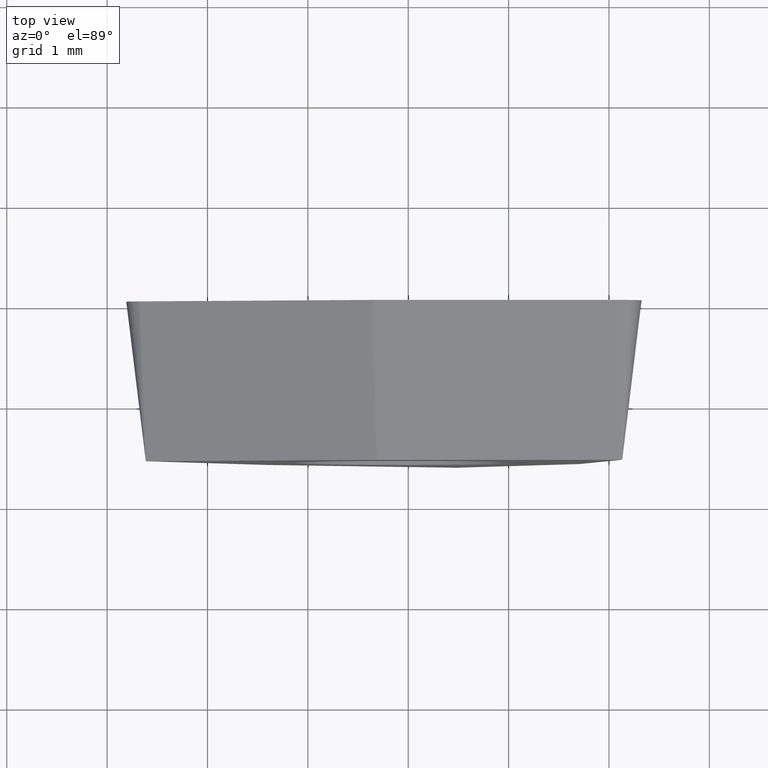
[diagram: clean part render]
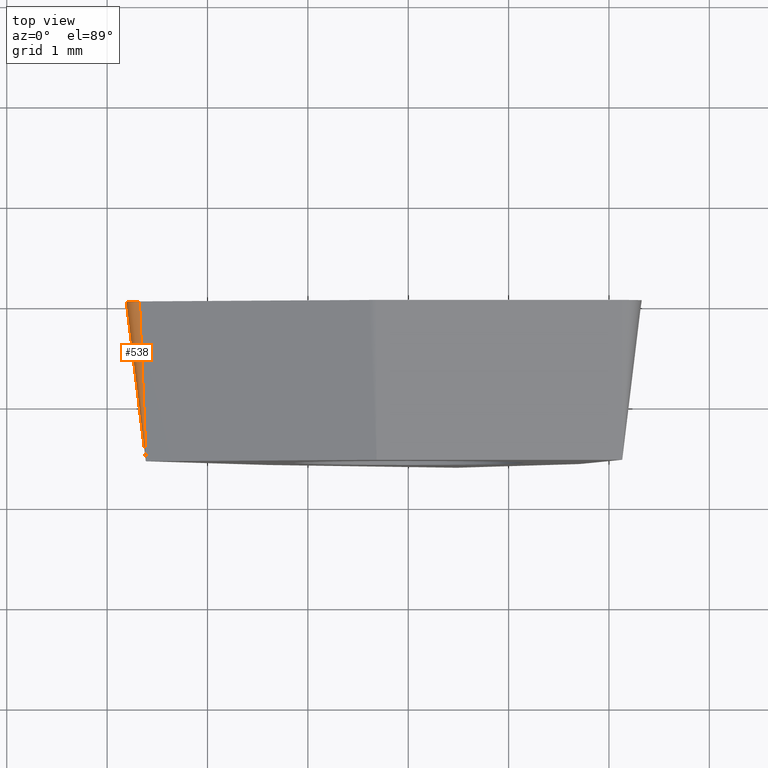
[diagram: same view with one face highlighted and labeled with its STEP entity id]
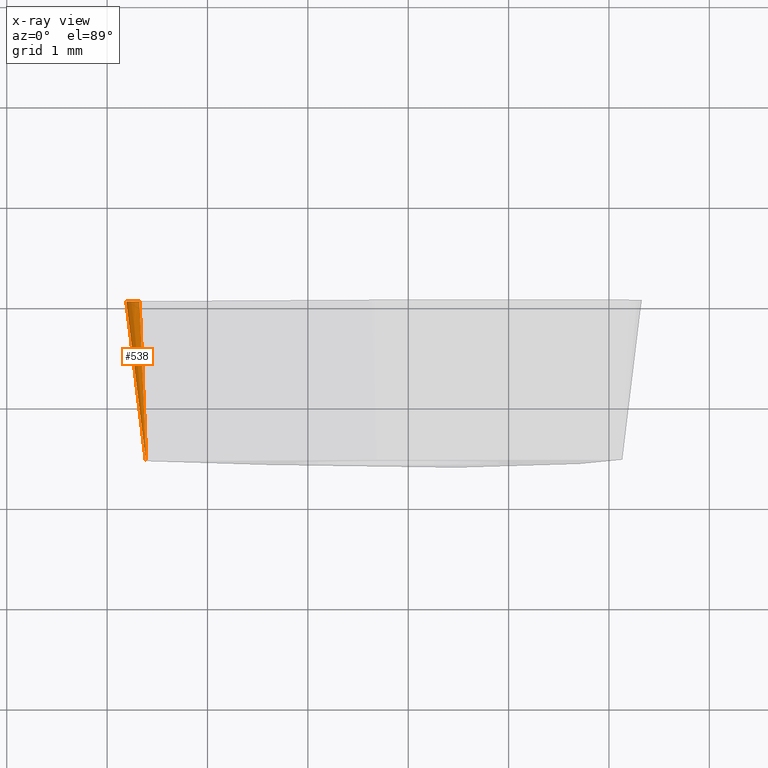
[diagram: x-ray of the same camera — body ghosted, the highlighted face saturated]
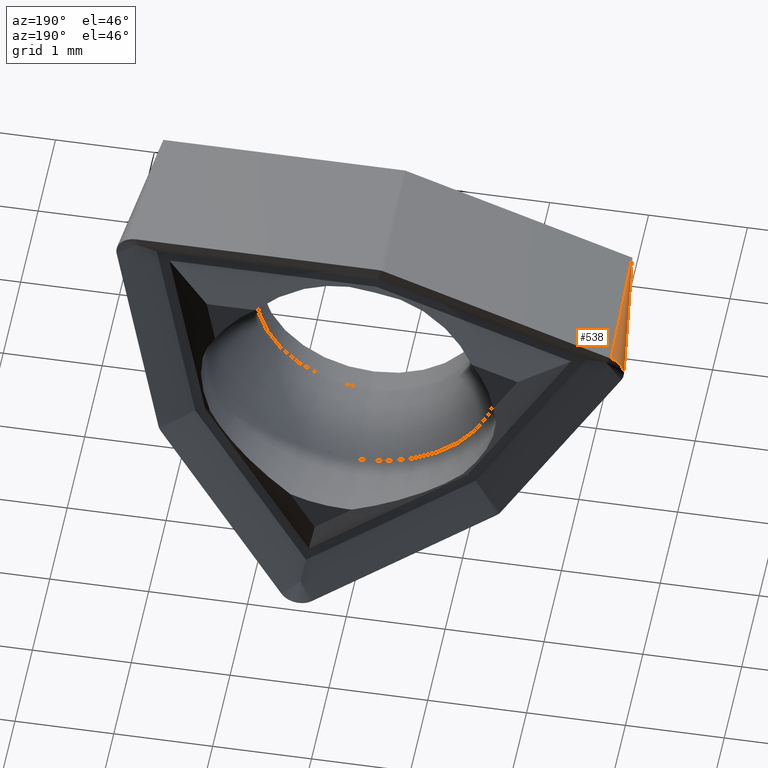
[diagram: same view with one face highlighted and labeled with its STEP entity id]
A machine part, top view. The second image highlights one B-rep face of the part: STEP entity #538.
The next image is the same camera in x-ray: the body ghosted, the highlighted face saturated — about 0% of this face is hidden behind the body in this view.
A second angle (auxiliary view) of the same face is appended — the face is thin or edge-on in the first view.
In plain terms, the highlighted conical surface has half-angle 7 deg.
Its self-contained STEP definition (entity closure, byte-faithful):
#10 = EDGE_CURVE ( 'NONE', #551, #1211, #360, .T. ) ;
#21 = VERTEX_POINT ( 'NONE', #968 ) ;
#56 = AXIS2_PLACEMENT_3D ( 'NONE', #1229, #716, #1114 ) ;
#100 = FACE_OUTER_BOUND ( 'NONE', #105, .T. ) ;
#105 = EDGE_LOOP ( 'NONE', ( #1233, #435, #1063, #835 ) ) ;
#161 = AXIS2_PLACEMENT_3D ( 'NONE', #581, #686, #1191 ) ;
#166 = VECTOR ( 'NONE', #775, 1000.000000000000000 ) ;
#203 = CIRCLE ( 'NONE', #56, 0.2000000000000011768 ) ;
#279 = DIRECTION ( 'NONE',  ( 0.000000000000000000, 1.000000000000000000, 0.000000000000000000 ) ) ;
#299 = EDGE_CURVE ( 'NONE', #476, #21, #726, .T. ) ;
#359 = CARTESIAN_POINT ( 'NONE',  ( -2.611127734752765495, -1.590000000170530337, 0.9542633902271777657 ) ) ;
#360 = LINE ( 'NONE', #1262, #166 ) ;
#418 = AXIS2_PLACEMENT_3D ( 'NONE', #1184, #279, #505 ) ;
#435 = ORIENTED_EDGE ( 'NONE', *, *, #10, .F. ) ;
#440 = CARTESIAN_POINT ( 'NONE',  ( -2.677899455810690110, -1.705301352722608232E-10, 1.137717186091944610 ) ) ;
#476 = VERTEX_POINT ( 'NONE', #359 ) ;
#505 = DIRECTION ( 'NONE',  ( 0.000000000000000000, 0.000000000000000000, 1.000000000000000000 ) ) ;
#538 = ADVANCED_FACE ( 'NONE', ( #100 ), #1068, .T. ) ;
#551 = VERTEX_POINT ( 'NONE', #1202 ) ;
#581 = CARTESIAN_POINT ( 'NONE',  ( -2.609495427145554824, -1.590000000170530337, 0.9497786619347623471 ) ) ;
#622 = DIRECTION ( 'NONE',  ( -0.04168177029843438131, 0.9925461516413219831, 0.1145197226978409422 ) ) ;
#686 = DIRECTION ( 'NONE',  ( 0.000000000000000000, 1.000000000000000000, 0.000000000000000000 ) ) ;
#716 = DIRECTION ( 'NONE',  ( 0.000000000000000000, 1.000000000000000000, 0.000000000000000000 ) ) ;
#726 = LINE ( 'NONE', #440, #1112 ) ;
#775 = DIRECTION ( 'NONE',  ( -0.1055419473313876366, 0.9925461516413219831, -0.06093467170257361315 ) ) ;
#835 = ORIENTED_EDGE ( 'NONE', *, *, #299, .T. ) ;
#968 = CARTESIAN_POINT ( 'NONE',  ( -2.677899455810690554, 0.000000000000000000, 1.137717186091945054 ) ) ;
#1006 = CARTESIAN_POINT ( 'NONE',  ( -2.782700507902444720, 0.000000000000000000, 0.8497786619347629244 ) ) ;
#1063 = ORIENTED_EDGE ( 'NONE', *, *, #1145, .T. ) ;
#1068 = CONICAL_SURFACE ( 'NONE', #418, 0.2000000000000011768, 0.1221730476396033355 ) ;
#1112 = VECTOR ( 'NONE', #622, 1000.000000000000000 ) ;
#1114 = DIRECTION ( 'NONE',  ( 0.000000000000000000, 0.000000000000000000, 1.000000000000000000 ) ) ;
#1145 = EDGE_CURVE ( 'NONE', #551, #476, #1232, .T. ) ;
#1184 = CARTESIAN_POINT ( 'NONE',  ( -2.609495427145554824, -1.705302565824240446E-10, 0.9497786619347623471 ) ) ;
#1191 = DIRECTION ( 'NONE',  ( 0.000000000000000000, 0.000000000000000000, 1.000000000000000000 ) ) ;
#1202 = CARTESIAN_POINT ( 'NONE',  ( -2.613628575096694107, -1.590000000170530337, 0.9473923878525718489 ) ) ;
#1211 = VERTEX_POINT ( 'NONE', #1006 ) ;
#1220 = EDGE_CURVE ( 'NONE', #1211, #21, #203, .T. ) ;
#1229 = CARTESIAN_POINT ( 'NONE',  ( -2.609495427145554824, -1.705302565824240446E-10, 0.9497786619347623471 ) ) ;
#1232 = CIRCLE ( 'NONE', #161, 0.004772548164382376355 ) ;
#1233 = ORIENTED_EDGE ( 'NONE', *, *, #1220, .F. ) ;
#1262 = CARTESIAN_POINT ( 'NONE',  ( -2.782700507902442943, -1.705301489703546548E-10, 0.8497786619347629244 ) ) ;